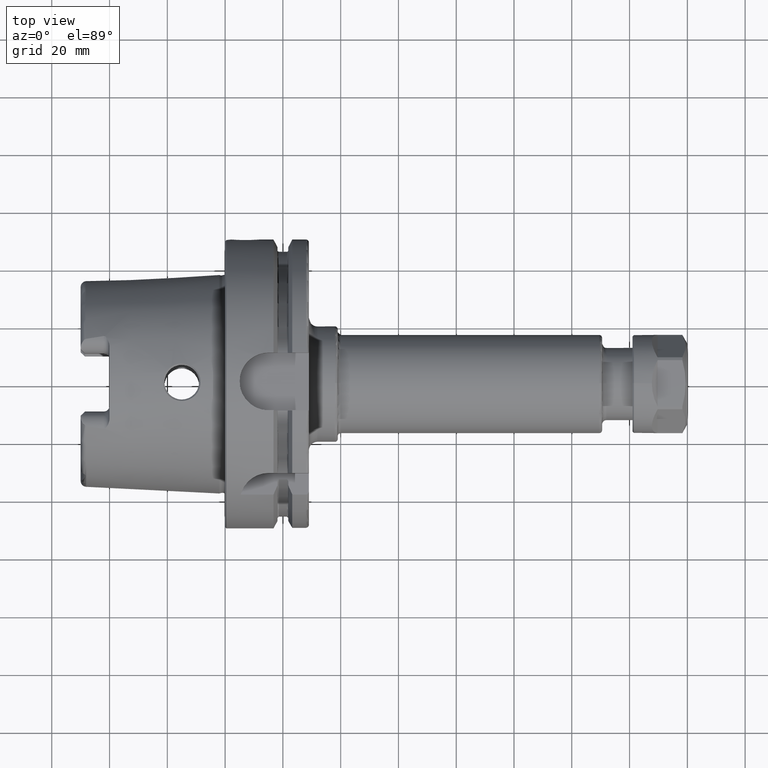
[diagram: clean part render]
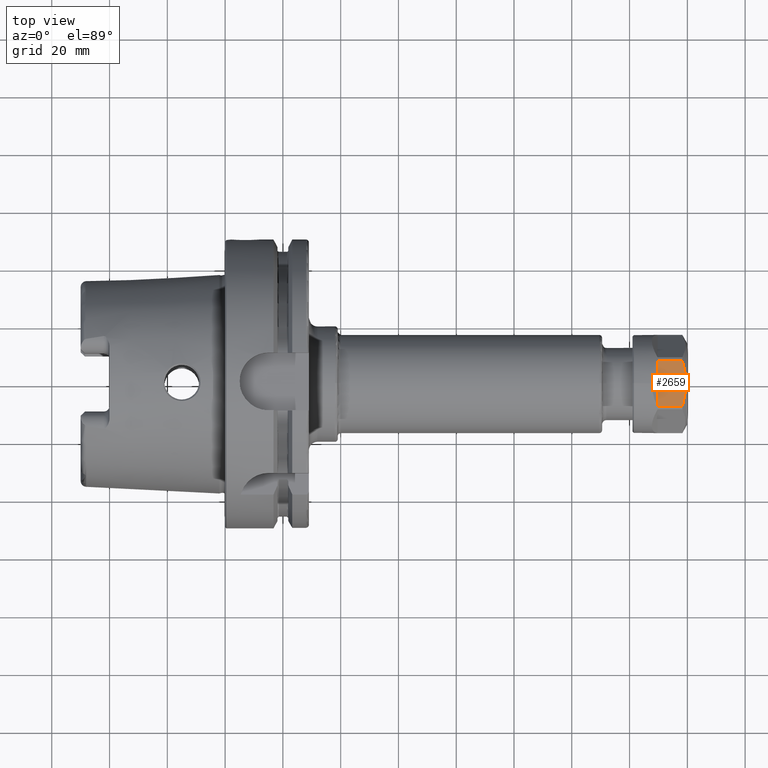
[diagram: same view with one face highlighted and labeled with its STEP entity id]
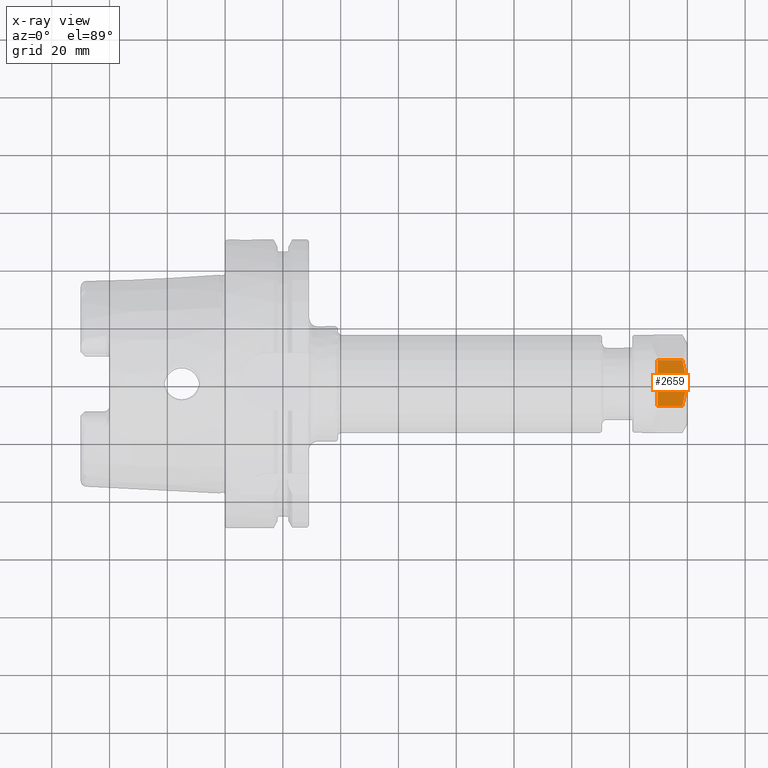
[diagram: x-ray of the same camera — body ghosted, the highlighted face saturated]
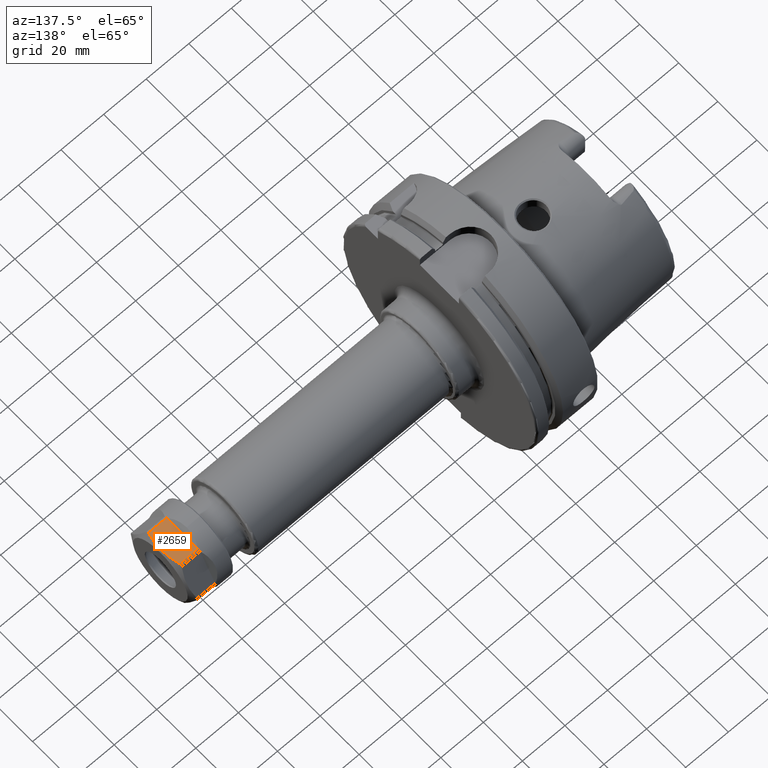
[diagram: same view with one face highlighted and labeled with its STEP entity id]
A machine part, top view. The second image highlights one B-rep face of the part: STEP entity #2659.
The next image is the same camera in x-ray: the body ghosted, the highlighted face saturated — about 0% of this face is hidden behind the body in this view.
A second angle (auxiliary view) of the same face is appended — the face is thin or edge-on in the first view.
In plain terms, the highlighted planar face has unit normal (0, 0, -1).
Its self-contained STEP definition (entity closure, byte-faithful):
#75=(
BOUNDED_CURVE()
B_SPLINE_CURVE(2,(#5529,#5530,#5531),.UNSPECIFIED.,.F.,.F.)
B_SPLINE_CURVE_WITH_KNOTS((3,3),(-4.47851568551576,-3.1891473668745),
 .UNSPECIFIED.)
CURVE()
GEOMETRIC_REPRESENTATION_ITEM()
RATIONAL_B_SPLINE_CURVE((1.51788044142269,1.61907247085087,1.61907247085087))
REPRESENTATION_ITEM('')
);
#76=(
BOUNDED_CURVE()
B_SPLINE_CURVE(2,(#5532,#5533,#5534),.UNSPECIFIED.,.F.,.F.)
B_SPLINE_CURVE_WITH_KNOTS((3,3),(-3.1891473668745,-1.89977904823324),
 .UNSPECIFIED.)
CURVE()
GEOMETRIC_REPRESENTATION_ITEM()
RATIONAL_B_SPLINE_CURVE((1.61907247085087,1.61907247085087,1.51788044142269))
REPRESENTATION_ITEM('')
);
#213=PLANE('',#3055);
#407=FACE_OUTER_BOUND('',#573,.T.);
#573=EDGE_LOOP('',(#2390,#2391,#2392,#2393,#2394));
#717=LINE('',#5498,#851);
#719=LINE('',#5505,#853);
#725=LINE('',#5526,#859);
#851=VECTOR('',#3791,8.567949192431);
#853=VECTOR('',#3797,8.567949192431);
#859=VECTOR('',#3815,16.);
#1271=VERTEX_POINT('',#5495);
#1272=VERTEX_POINT('',#5497);
#1274=VERTEX_POINT('',#5502);
#1275=VERTEX_POINT('',#5504);
#1285=VERTEX_POINT('',#5528);
#1645=EDGE_CURVE('',#1272,#1271,#717,.T.);
#1649=EDGE_CURVE('',#1274,#1275,#719,.T.);
#1660=EDGE_CURVE('',#1272,#1274,#725,.T.);
#1661=EDGE_CURVE('',#1271,#1285,#75,.T.);
#1662=EDGE_CURVE('',#1285,#1275,#76,.T.);
#2390=ORIENTED_EDGE('',*,*,#1660,.F.);
#2391=ORIENTED_EDGE('',*,*,#1645,.T.);
#2392=ORIENTED_EDGE('',*,*,#1661,.T.);
#2393=ORIENTED_EDGE('',*,*,#1662,.T.);
#2394=ORIENTED_EDGE('',*,*,#1649,.F.);
#2659=ADVANCED_FACE('',(#407),#213,.F.);
#3055=AXIS2_PLACEMENT_3D('',#5527,#3816,#3817);
#3791=DIRECTION('',(1.,0.,0.));
#3797=DIRECTION('',(1.,0.,0.));
#3815=DIRECTION('',(0.,1.,0.));
#3816=DIRECTION('center_axis',(0.,0.,-1.));
#3817=DIRECTION('ref_axis',(0.,1.,0.));
#5495=CARTESIAN_POINT('',(7.767949192431,-8.,15.));
#5497=CARTESIAN_POINT('',(-0.8,-8.,15.));
#5498=CARTESIAN_POINT('',(-0.8,-8.,15.));
#5502=CARTESIAN_POINT('',(-0.8,8.,15.));
#5504=CARTESIAN_POINT('',(7.767949192431,8.,15.));
#5505=CARTESIAN_POINT('',(-0.8,8.,15.));
#5526=CARTESIAN_POINT('',(-0.8,-8.,15.));
#5527=CARTESIAN_POINT('Origin',(9.5,-10.,15.));
#5528=CARTESIAN_POINT('',(8.92264973080904,1.60420055967077E-15,15.));
#5529=CARTESIAN_POINT('Ctrl Pts',(7.76794919242979,-7.99999999999997,15.));
#5530=CARTESIAN_POINT('Ctrl Pts',(8.92264973080904,-3.74999999999999,15.));
#5531=CARTESIAN_POINT('Ctrl Pts',(8.92264973080904,1.3714309206205E-15,
15.));
#5532=CARTESIAN_POINT('Ctrl Pts',(8.92264973080904,1.3714309206205E-15,
15.));
#5533=CARTESIAN_POINT('Ctrl Pts',(8.92264973080904,3.75,15.));
#5534=CARTESIAN_POINT('Ctrl Pts',(7.76794919242979,7.99999999999999,15.));